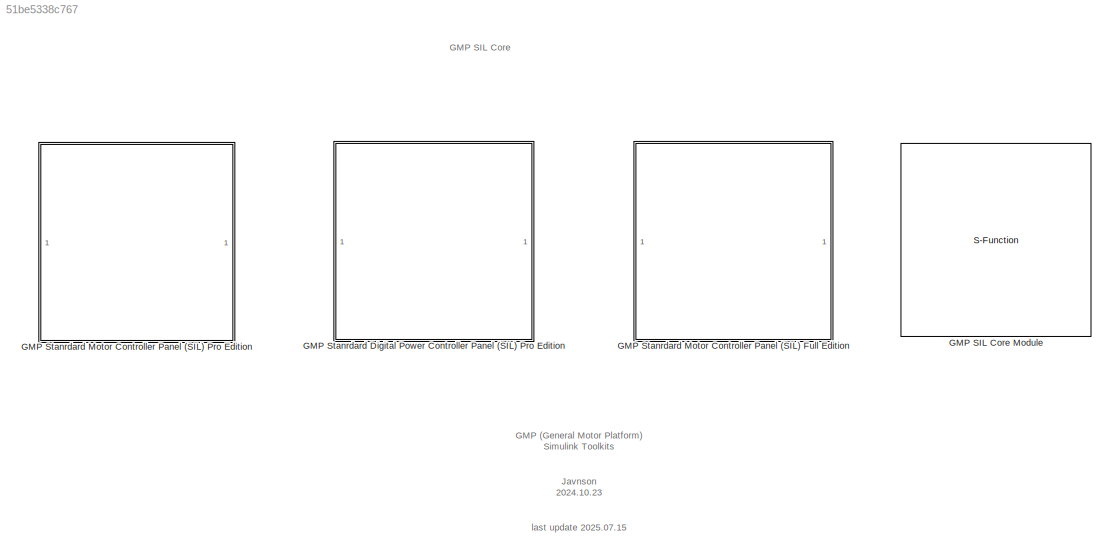
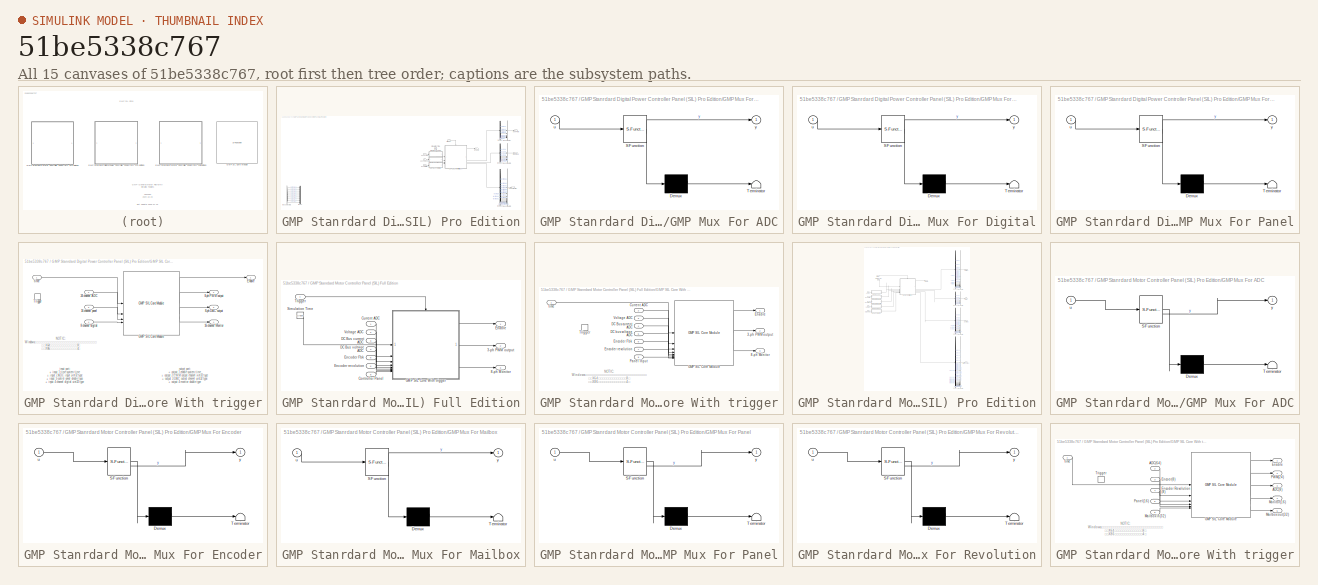
[diagram: thumbnail index - all 15 canvases of the model, root first then tree order]
MODEL slx_51be5338c767
KIND library
CONFIG AbsTol = auto
CONFIG EnableMultiTasking = off
CONFIG FixedStep = auto
CONFIG MaxStep = auto
CONFIG MinStep = auto
CONFIG RelTol = 1e-3
CONFIG SampleTimeConstraint = Unconstrained
CONFIG SolverName = VariableStepAuto
CONFIG StartTime = 0.0
CONFIG StopTime = 10.0
BLOCK [S-Function] GMP SIL Core Module
  EnableBusSupport = off
  FunctionName = GMP_SIL_Core
  Parameters = NumberUnpackedPorts, UnpackedDataTypes, UnpackedDataSizes, NumberPackedPorts, PackedDataTypes, PackedDataSizes, Alignment, HostAddr, TargetPort
  SFcnIsStateOwnerBlock = off
  SFunctionDeploymentMode = off
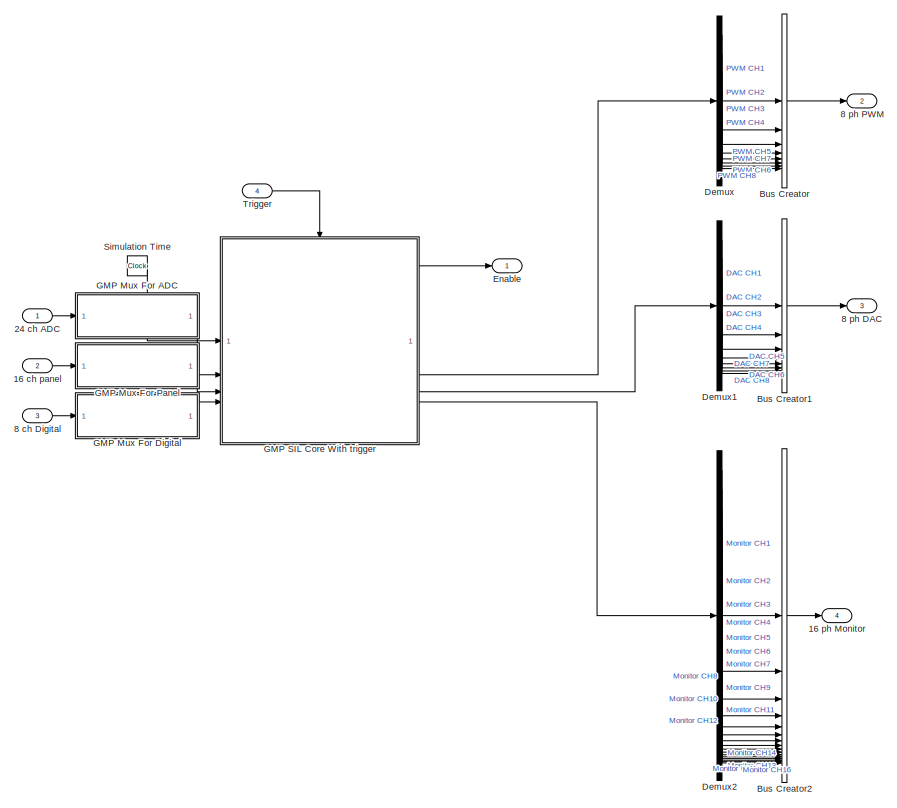
[diagram: GMP Stanrdard Digital Power Controller Panel (SIL) Pro Edition - part 1/2, right side, full height]
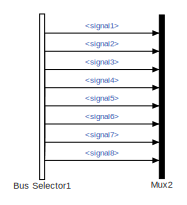
[diagram: GMP Stanrdard Digital Power Controller Panel (SIL) Pro Edition - part 2/2, bottom left region]
BLOCK [SubSystem] GMP Stanrdard Digital Power Controller Panel (SIL) Pro Edition
  PortSchema = {"entries":[{"content":{"sides":[{"content":{"connectorIds":["In1","In2","In3"]},"type":"ConnectorPlacement.EquallySpacedRectSide","uuid":"45c67bc9-9540-469a-a4ac-1e12eb9acca3"},{"content":{"connectorIds":["Out1","Out2","Out3","Out4"],"side":"RIGHT"},"type":"ConnectorPlacement.EquallySpacedRectSide","uuid":"a17116b4-0460-48ab-8ada-a785da6c5e29"},{"content":{"connectorIds":["In4"],"side":"TOP"},"ty...<+404ch>
BLOCK [Inport] GMP Stanrdard Digital Power Controller Panel (SIL) Pro Edition/16 ch panel
  Port = 2
BLOCK [Outport] GMP Stanrdard Digital Power Controller Panel (SIL) Pro Edition/16 ph Monitor
  Port = 4
BLOCK [Inport] GMP Stanrdard Digital Power Controller Panel (SIL) Pro Edition/24 ch ADC
BLOCK [Inport] GMP Stanrdard Digital Power Controller Panel (SIL) Pro Edition/8 ch Digital
  Port = 3
BLOCK [Outport] GMP Stanrdard Digital Power Controller Panel (SIL) Pro Edition/8 ph DAC
  Port = 3
BLOCK [Outport] GMP Stanrdard Digital Power Controller Panel (SIL) Pro Edition/8 ph PWM
  Port = 2
BLOCK [BusCreator] GMP Stanrdard Digital Power Controller Panel (SIL) Pro Edition/Bus Creator
  DisplayOption = bar
  InheritFromInputs = on
  Inputs = 8
BLOCK [BusCreator] GMP Stanrdard Digital Power Controller Panel (SIL) Pro Edition/Bus Creator1
  DisplayOption = bar
  InheritFromInputs = on
  Inputs = 8
BLOCK [BusCreator] GMP Stanrdard Digital Power Controller Panel (SIL) Pro Edition/Bus Creator2
  DisplayOption = bar
  InheritFromInputs = on
  Inputs = 16
BLOCK [BusSelector] GMP Stanrdard Digital Power Controller Panel (SIL) Pro Edition/Bus Selector1
  Commented = on
  OutputSignals = signal1,signal2,signal3,signal4,signal5,signal6,signal7,signal8
BLOCK [Demux] GMP Stanrdard Digital Power Controller Panel (SIL) Pro Edition/Demux
  Outputs = 8
BLOCK [Demux] GMP Stanrdard Digital Power Controller Panel (SIL) Pro Edition/Demux1
  Outputs = 8
BLOCK [Demux] GMP Stanrdard Digital Power Controller Panel (SIL) Pro Edition/Demux2
  Outputs = 16
BLOCK [Outport] GMP Stanrdard Digital Power Controller Panel (SIL) Pro Edition/Enable
BLOCK [SubSystem] GMP Stanrdard Digital Power Controller Panel (SIL) Pro Edition/GMP Mux For ADC
  ErrorFcn = Stateflow.Translate.translate
  PermitHierarchicalResolution = ExplicitOnly
  SFBlockType = MATLAB Function
  TreatAsAtomicUnit = on
BLOCK [Demux] GMP Stanrdard Digital Power Controller Panel (SIL) Pro Edition/GMP Mux For ADC/ Demux 
  Outputs = 1
BLOCK [S-Function] GMP Stanrdard Digital Power Controller Panel (SIL) Pro Edition/GMP Mux For ADC/ SFunction 
  EnableBusSupport = off
  FunctionName = sf_sfun
  PortCounts = [1 2]
  SFcnIsStateOwnerBlock = off
  SFunctionDeploymentMode = off
  Tag = Stateflow S-Function 5
BLOCK [Terminator] GMP Stanrdard Digital Power Controller Panel (SIL) Pro Edition/GMP Mux For ADC/ Terminator 
BLOCK [Inport] GMP Stanrdard Digital Power Controller Panel (SIL) Pro Edition/GMP Mux For ADC/u
BLOCK [Outport] GMP Stanrdard Digital Power Controller Panel (SIL) Pro Edition/GMP Mux For ADC/y
BLOCK [SubSystem] GMP Stanrdard Digital Power Controller Panel (SIL) Pro Edition/GMP Mux For Digital
  ErrorFcn = Stateflow.Translate.translate
  PermitHierarchicalResolution = ExplicitOnly
  SFBlockType = MATLAB Function
  TreatAsAtomicUnit = on
BLOCK [Demux] GMP Stanrdard Digital Power Controller Panel (SIL) Pro Edition/GMP Mux For Digital/ Demux 
  Outputs = 1
BLOCK [S-Function] GMP Stanrdard Digital Power Controller Panel (SIL) Pro Edition/GMP Mux For Digital/ SFunction 
  EnableBusSupport = off
  FunctionName = sf_sfun
  PortCounts = [1 2]
  SFcnIsStateOwnerBlock = off
  SFunctionDeploymentMode = off
  Tag = Stateflow S-Function 3
BLOCK [Terminator] GMP Stanrdard Digital Power Controller Panel (SIL) Pro Edition/GMP Mux For Digital/ Terminator 
BLOCK [Inport] GMP Stanrdard Digital Power Controller Panel (SIL) Pro Edition/GMP Mux For Digital/u
BLOCK [Outport] GMP Stanrdard Digital Power Controller Panel (SIL) Pro Edition/GMP Mux For Digital/y
BLOCK [SubSystem] GMP Stanrdard Digital Power Controller Panel (SIL) Pro Edition/GMP Mux For Panel
  ErrorFcn = Stateflow.Translate.translate
  PermitHierarchicalResolution = ExplicitOnly
  SFBlockType = MATLAB Function
  TreatAsAtomicUnit = on
BLOCK [Demux] GMP Stanrdard Digital Power Controller Panel (SIL) Pro Edition/GMP Mux For Panel/ Demux 
  Outputs = 1
BLOCK [S-Function] GMP Stanrdard Digital Power Controller Panel (SIL) Pro Edition/GMP Mux For Panel/ SFunction 
  EnableBusSupport = off
  FunctionName = sf_sfun
  PortCounts = [1 2]
  SFcnIsStateOwnerBlock = off
  SFunctionDeploymentMode = off
  Tag = Stateflow S-Function 4
BLOCK [Terminator] GMP Stanrdard Digital Power Controller Panel (SIL) Pro Edition/GMP Mux For Panel/ Terminator 
BLOCK [Inport] GMP Stanrdard Digital Power Controller Panel (SIL) Pro Edition/GMP Mux For Panel/u
BLOCK [Outport] GMP Stanrdard Digital Power Controller Panel (SIL) Pro Edition/GMP Mux For Panel/y
BLOCK [SubSystem] GMP Stanrdard Digital Power Controller Panel (SIL) Pro Edition/GMP SIL Core With trigger
BLOCK [Outport] GMP Stanrdard Digital Power Controller Panel (SIL) Pro Edition/GMP SIL Core With trigger/16 channel Monitor
  Port = 4
BLOCK [Inport] GMP Stanrdard Digital Power Controller Panel (SIL) Pro Edition/GMP SIL Core With trigger/16 channel panel
  Port = 3
BLOCK [Inport] GMP Stanrdard Digital Power Controller Panel (SIL) Pro Edition/GMP SIL Core With trigger/24 channel ADC
  Port = 2
BLOCK [Inport] GMP Stanrdard Digital Power Controller Panel (SIL) Pro Edition/GMP SIL Core With trigger/8 channel digital
  Port = 4
BLOCK [Outport] GMP Stanrdard Digital Power Controller Panel (SIL) Pro Edition/GMP SIL Core With trigger/8-ph DAC output
  Port = 3
BLOCK [Outport] GMP Stanrdard Digital Power Controller Panel (SIL) Pro Edition/GMP SIL Core With trigger/8-ph PWM output
  Port = 2
BLOCK [Outport] GMP Stanrdard Digital Power Controller Panel (SIL) Pro Edition/GMP SIL Core With trigger/Enable
BLOCK [Reference] GMP Stanrdard Digital Power Controller Panel (SIL) Pro Edition/GMP SIL Core With trigger/GMP SIL Core Module  REF=gmp_sil_core_pack/GMP SIL Core Module
  SourceBlock = gmp_sil_core_pack/GMP SIL Core Module
  SourceProductName = GMP Utilities Library
  SourceType = GMP CTL SIL Core
BLOCK [TriggerPort] GMP Stanrdard Digital Power Controller Panel (SIL) Pro Edition/GMP SIL Core With trigger/Trigger
  PortDimensions = 1
  StatesWhenEnabling = held
  VariantControl = (inherit)
BLOCK [Inport] GMP Stanrdard Digital Power Controller Panel (SIL) Pro Edition/GMP SIL Core With trigger/time
BLOCK [Mux] GMP Stanrdard Digital Power Controller Panel (SIL) Pro Edition/Mux2
  Commented = on
  DisplayOption = bar
  Inputs = 8
BLOCK [Clock] GMP Stanrdard Digital Power Controller Panel (SIL) Pro Edition/Simulation Time
BLOCK [Inport] GMP Stanrdard Digital Power Controller Panel (SIL) Pro Edition/Trigger
  Port = 4
BLOCK [SubSystem] GMP Stanrdard Motor Controller Panel (SIL) Full Edition
  PortSchema = {"entries":[{"content":{"sides":[{"content":{"connectorIds":["In1","In2","In3","In4","In5","In6"]},"type":"ConnectorPlacement.EquallySpacedRectSide","uuid":"45c67bc9-9540-469a-a4ac-1e12eb9acca3"},{"content":{"connectorIds":["Out1","Out2"],"side":"RIGHT"},"type":"ConnectorPlacement.EquallySpacedRectSide","uuid":"a17116b4-0460-48ab-8ada-a785da6c5e29"},{"content":{"connectorIds":["In7"],"side":"TOP"}...<+438ch>
BLOCK [Outport] GMP Stanrdard Motor Controller Panel (SIL) Full Edition/3-ph PWM output
  Port = 2
BLOCK [Outport] GMP Stanrdard Motor Controller Panel (SIL) Full Edition/8-ph Monitor
  Port = 3
BLOCK [Inport] GMP Stanrdard Motor Controller Panel (SIL) Full Edition/Controller Panel
  Port = 8
BLOCK [Inport] GMP Stanrdard Motor Controller Panel (SIL) Full Edition/Current ADC
BLOCK [Inport] GMP Stanrdard Motor Controller Panel (SIL) Full Edition/DC Bus current ADC
  Port = 3
BLOCK [Inport] GMP Stanrdard Motor Controller Panel (SIL) Full Edition/DC Bus voltage ADC
  Port = 4
BLOCK [Outport] GMP Stanrdard Motor Controller Panel (SIL) Full Edition/Enable
BLOCK [Inport] GMP Stanrdard Motor Controller Panel (SIL) Full Edition/Encoder Fbk
  Port = 5
BLOCK [Inport] GMP Stanrdard Motor Controller Panel (SIL) Full Edition/Encoder revolution
  Port = 6
BLOCK [SubSystem] GMP Stanrdard Motor Controller Panel (SIL) Full Edition/GMP SIL Core With trigger
BLOCK [Outport] GMP Stanrdard Motor Controller Panel (SIL) Full Edition/GMP SIL Core With trigger/3-ph PWM output
  Port = 2
BLOCK [Outport] GMP Stanrdard Motor Controller Panel (SIL) Full Edition/GMP SIL Core With trigger/8-ph Monitor
  Port = 3
BLOCK [Inport] GMP Stanrdard Motor Controller Panel (SIL) Full Edition/GMP SIL Core With trigger/Current ADC
  Port = 2
BLOCK [Inport] GMP Stanrdard Motor Controller Panel (SIL) Full Edition/GMP SIL Core With trigger/DC Bus current ADC
  Port = 4
BLOCK [Inport] GMP Stanrdard Motor Controller Panel (SIL) Full Edition/GMP SIL Core With trigger/DC bus voltage ADC
  Port = 5
BLOCK [Outport] GMP Stanrdard Motor Controller Panel (SIL) Full Edition/GMP SIL Core With trigger/Enable
BLOCK [Inport] GMP Stanrdard Motor Controller Panel (SIL) Full Edition/GMP SIL Core With trigger/Encoder Fbk
  Port = 6
BLOCK [Inport] GMP Stanrdard Motor Controller Panel (SIL) Full Edition/GMP SIL Core With trigger/Encoder revolution
  Port = 7
BLOCK [Reference] GMP Stanrdard Motor Controller Panel (SIL) Full Edition/GMP SIL Core With trigger/GMP SIL Core Module  REF=gmp_sil_core_pack/GMP SIL Core Module
  SourceBlock = gmp_sil_core_pack/GMP SIL Core Module
  SourceProductName = GMP Utilities Library
  SourceType = GMP CTL SIL Core
BLOCK [Inport] GMP Stanrdard Motor Controller Panel (SIL) Full Edition/GMP SIL Core With trigger/Panel Input
  Port = 8
BLOCK [TriggerPort] GMP Stanrdard Motor Controller Panel (SIL) Full Edition/GMP SIL Core With trigger/Trigger
  PortDimensions = 1
  StatesWhenEnabling = held
  VariantControl = (inherit)
BLOCK [Inport] GMP Stanrdard Motor Controller Panel (SIL) Full Edition/GMP SIL Core With trigger/Voltage ADC
  Port = 3
BLOCK [Inport] GMP Stanrdard Motor Controller Panel (SIL) Full Edition/GMP SIL Core With trigger/time
BLOCK [Clock] GMP Stanrdard Motor Controller Panel (SIL) Full Edition/Simulation Time
BLOCK [Inport] GMP Stanrdard Motor Controller Panel (SIL) Full Edition/Trigger
  Port = 7
BLOCK [Inport] GMP Stanrdard Motor Controller Panel (SIL) Full Edition/Voltage ADC
  Port = 2
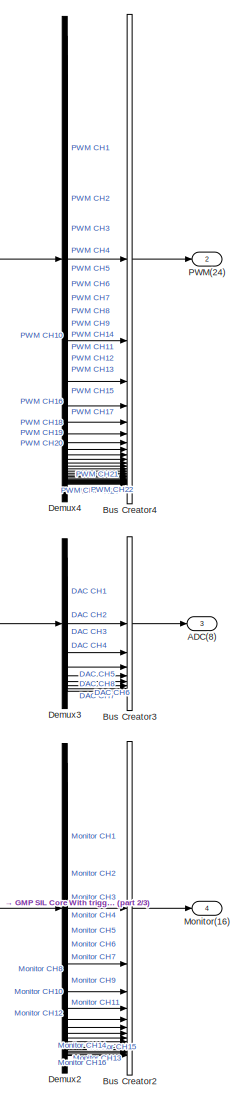
[diagram: GMP Stanrdard Motor Controller Panel (SIL) Pro Edition - part 1/3, top right region]
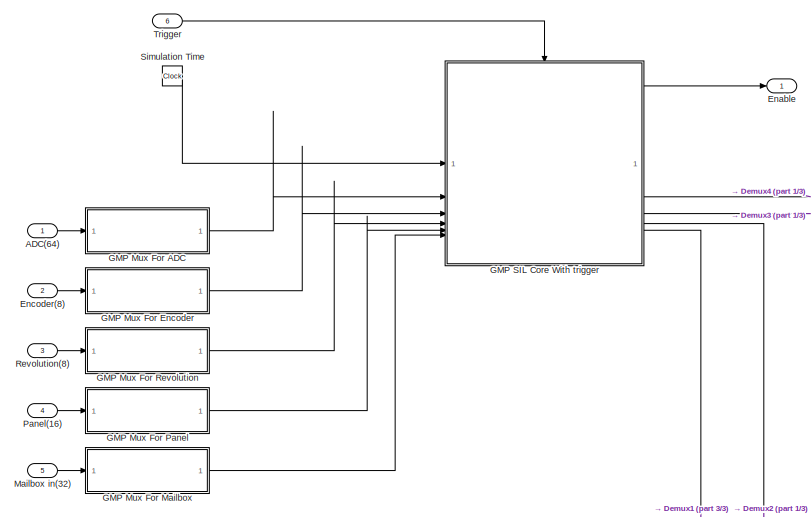
[diagram: GMP Stanrdard Motor Controller Panel (SIL) Pro Edition - part 2/3, top left region]
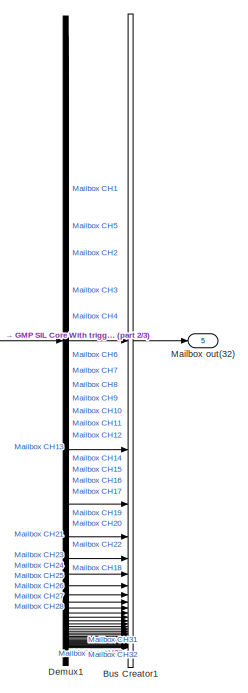
[diagram: GMP Stanrdard Motor Controller Panel (SIL) Pro Edition - part 3/3, bottom right region]
BLOCK [SubSystem] GMP Stanrdard Motor Controller Panel (SIL) Pro Edition
  PortSchema = {"entries":[{"content":{"sides":[{"content":{"connectorIds":["In1","In2","In3","In4","In5"]},"type":"ConnectorPlacement.EquallySpacedRectSide","uuid":"bbb38fc4-c00d-4f5b-8f26-db6bc7dcef4b"},{"content":{"connectorIds":["Out1","Out2","Out3","Out4","Out5"],"side":"RIGHT"},"type":"ConnectorPlacement.EquallySpacedRectSide","uuid":"8c76eb91-b69b-4328-81e2-2047f2677c46"},{"content":{"connectorIds":["In6"...<+297ch>
BLOCK [Inport] GMP Stanrdard Motor Controller Panel (SIL) Pro Edition/ADC(64)
BLOCK [Outport] GMP Stanrdard Motor Controller Panel (SIL) Pro Edition/ADC(8)
  Port = 3
BLOCK [BusCreator] GMP Stanrdard Motor Controller Panel (SIL) Pro Edition/Bus Creator1
  DisplayOption = bar
  InheritFromInputs = on
  Inputs = 32
BLOCK [BusCreator] GMP Stanrdard Motor Controller Panel (SIL) Pro Edition/Bus Creator2
  DisplayOption = bar
  InheritFromInputs = on
  Inputs = 16
BLOCK [BusCreator] GMP Stanrdard Motor Controller Panel (SIL) Pro Edition/Bus Creator3
  DisplayOption = bar
  InheritFromInputs = on
  Inputs = 8
BLOCK [BusCreator] GMP Stanrdard Motor Controller Panel (SIL) Pro Edition/Bus Creator4
  DisplayOption = bar
  InheritFromInputs = on
  Inputs = 24
BLOCK [Demux] GMP Stanrdard Motor Controller Panel (SIL) Pro Edition/Demux1
  Outputs = 32
BLOCK [Demux] GMP Stanrdard Motor Controller Panel (SIL) Pro Edition/Demux2
  Outputs = 16
BLOCK [Demux] GMP Stanrdard Motor Controller Panel (SIL) Pro Edition/Demux3
  Outputs = 8
BLOCK [Demux] GMP Stanrdard Motor Controller Panel (SIL) Pro Edition/Demux4
  Outputs = 24
BLOCK [Outport] GMP Stanrdard Motor Controller Panel (SIL) Pro Edition/Enable
BLOCK [Inport] GMP Stanrdard Motor Controller Panel (SIL) Pro Edition/Encoder(8)
  Port = 2
BLOCK [SubSystem] GMP Stanrdard Motor Controller Panel (SIL) Pro Edition/GMP Mux For ADC
  ErrorFcn = Stateflow.Translate.translate
  PermitHierarchicalResolution = ExplicitOnly
  SFBlockType = MATLAB Function
  TreatAsAtomicUnit = on
BLOCK [Demux] GMP Stanrdard Motor Controller Panel (SIL) Pro Edition/GMP Mux For ADC/ Demux 
  Outputs = 1
BLOCK [S-Function] GMP Stanrdard Motor Controller Panel (SIL) Pro Edition/GMP Mux For ADC/ SFunction 
  EnableBusSupport = off
  FunctionName = sf_sfun
  PortCounts = [1 2]
  SFcnIsStateOwnerBlock = off
  SFunctionDeploymentMode = off
  Tag = Stateflow S-Function 11
BLOCK [Terminator] GMP Stanrdard Motor Controller Panel (SIL) Pro Edition/GMP Mux For ADC/ Terminator 
BLOCK [Inport] GMP Stanrdard Motor Controller Panel (SIL) Pro Edition/GMP Mux For ADC/u
BLOCK [Outport] GMP Stanrdard Motor Controller Panel (SIL) Pro Edition/GMP Mux For ADC/y
BLOCK [SubSystem] GMP Stanrdard Motor Controller Panel (SIL) Pro Edition/GMP Mux For Encoder
  ErrorFcn = Stateflow.Translate.translate
  PermitHierarchicalResolution = ExplicitOnly
  SFBlockType = MATLAB Function
  TreatAsAtomicUnit = on
BLOCK [Demux] GMP Stanrdard Motor Controller Panel (SIL) Pro Edition/GMP Mux For Encoder/ Demux 
  Outputs = 1
BLOCK [S-Function] GMP Stanrdard Motor Controller Panel (SIL) Pro Edition/GMP Mux For Encoder/ SFunction 
  EnableBusSupport = off
  FunctionName = sf_sfun
  PortCounts = [1 2]
  SFcnIsStateOwnerBlock = off
  SFunctionDeploymentMode = off
  Tag = Stateflow S-Function 10
BLOCK [Terminator] GMP Stanrdard Motor Controller Panel (SIL) Pro Edition/GMP Mux For Encoder/ Terminator 
BLOCK [Inport] GMP Stanrdard Motor Controller Panel (SIL) Pro Edition/GMP Mux For Encoder/u
BLOCK [Outport] GMP Stanrdard Motor Controller Panel (SIL) Pro Edition/GMP Mux For Encoder/y
BLOCK [SubSystem] GMP Stanrdard Motor Controller Panel (SIL) Pro Edition/GMP Mux For Mailbox
  ErrorFcn = Stateflow.Translate.translate
  PermitHierarchicalResolution = ExplicitOnly
  SFBlockType = MATLAB Function
  TreatAsAtomicUnit = on
BLOCK [Demux] GMP Stanrdard Motor Controller Panel (SIL) Pro Edition/GMP Mux For Mailbox/ Demux 
  Outputs = 1
BLOCK [S-Function] GMP Stanrdard Motor Controller Panel (SIL) Pro Edition/GMP Mux For Mailbox/ SFunction 
  EnableBusSupport = off
  FunctionName = sf_sfun
  PortCounts = [1 2]
  SFcnIsStateOwnerBlock = off
  SFunctionDeploymentMode = off
  Tag = Stateflow S-Function 7
BLOCK [Terminator] GMP Stanrdard Motor Controller Panel (SIL) Pro Edition/GMP Mux For Mailbox/ Terminator 
BLOCK [Inport] GMP Stanrdard Motor Controller Panel (SIL) Pro Edition/GMP Mux For Mailbox/u
BLOCK [Outport] GMP Stanrdard Motor Controller Panel (SIL) Pro Edition/GMP Mux For Mailbox/y
BLOCK [SubSystem] GMP Stanrdard Motor Controller Panel (SIL) Pro Edition/GMP Mux For Panel
  ErrorFcn = Stateflow.Translate.translate
  PermitHierarchicalResolution = ExplicitOnly
  SFBlockType = MATLAB Function
  TreatAsAtomicUnit = on
BLOCK [Demux] GMP Stanrdard Motor Controller Panel (SIL) Pro Edition/GMP Mux For Panel/ Demux 
  Outputs = 1
BLOCK [S-Function] GMP Stanrdard Motor Controller Panel (SIL) Pro Edition/GMP Mux For Panel/ SFunction 
  EnableBusSupport = off
  FunctionName = sf_sfun
  PortCounts = [1 2]
  SFcnIsStateOwnerBlock = off
  SFunctionDeploymentMode = off
  Tag = Stateflow S-Function 8
BLOCK [Terminator] GMP Stanrdard Motor Controller Panel (SIL) Pro Edition/GMP Mux For Panel/ Terminator 
BLOCK [Inport] GMP Stanrdard Motor Controller Panel (SIL) Pro Edition/GMP Mux For Panel/u
BLOCK [Outport] GMP Stanrdard Motor Controller Panel (SIL) Pro Edition/GMP Mux For Panel/y
BLOCK [SubSystem] GMP Stanrdard Motor Controller Panel (SIL) Pro Edition/GMP Mux For Revolution
  ErrorFcn = Stateflow.Translate.translate
  PermitHierarchicalResolution = ExplicitOnly
  SFBlockType = MATLAB Function
  TreatAsAtomicUnit = on
BLOCK [Demux] GMP Stanrdard Motor Controller Panel (SIL) Pro Edition/GMP Mux For Revolution/ Demux 
  Outputs = 1
BLOCK [S-Function] GMP Stanrdard Motor Controller Panel (SIL) Pro Edition/GMP Mux For Revolution/ SFunction 
  EnableBusSupport = off
  FunctionName = sf_sfun
  PortCounts = [1 2]
  SFcnIsStateOwnerBlock = off
  SFunctionDeploymentMode = off
  Tag = Stateflow S-Function 9
BLOCK [Terminator] GMP Stanrdard Motor Controller Panel (SIL) Pro Edition/GMP Mux For Revolution/ Terminator 
BLOCK [Inport] GMP Stanrdard Motor Controller Panel (SIL) Pro Edition/GMP Mux For Revolution/u
BLOCK [Outport] GMP Stanrdard Motor Controller Panel (SIL) Pro Edition/GMP Mux For Revolution/y
BLOCK [SubSystem] GMP Stanrdard Motor Controller Panel (SIL) Pro Edition/GMP SIL Core With trigger
BLOCK [Inport] GMP Stanrdard Motor Controller Panel (SIL) Pro Edition/GMP SIL Core With trigger/ADC(64)
  Port = 2
BLOCK [Outport] GMP Stanrdard Motor Controller Panel (SIL) Pro Edition/GMP SIL Core With trigger/ADC(8)
  Port = 3
BLOCK [Outport] GMP Stanrdard Motor Controller Panel (SIL) Pro Edition/GMP SIL Core With trigger/Enable
BLOCK [Inport] GMP Stanrdard Motor Controller Panel (SIL) Pro Edition/GMP SIL Core With trigger/Encoder Revolution(8)
  Port = 4
BLOCK [Inport] GMP Stanrdard Motor Controller Panel (SIL) Pro Edition/GMP SIL Core With trigger/Encoer(8)
  Port = 3
BLOCK [Reference] GMP Stanrdard Motor Controller Panel (SIL) Pro Edition/GMP SIL Core With trigger/GMP SIL Core Module  REF=gmp_sil_core_pack/GMP SIL Core Module
  SourceBlock = gmp_sil_core_pack/GMP SIL Core Module
  SourceProductName = GMP Utilities Library
  SourceType = GMP CTL SIL Core
BLOCK [Inport] GMP Stanrdard Motor Controller Panel (SIL) Pro Edition/GMP SIL Core With trigger/Mailbox in(32)
  Port = 6
BLOCK [Outport] GMP Stanrdard Motor Controller Panel (SIL) Pro Edition/GMP SIL Core With trigger/Mailbox out(32)
  Port = 5
BLOCK [Outport] GMP Stanrdard Motor Controller Panel (SIL) Pro Edition/GMP SIL Core With trigger/Monitor(16)
  Port = 4
BLOCK [Outport] GMP Stanrdard Motor Controller Panel (SIL) Pro Edition/GMP SIL Core With trigger/PWM(24)
  Port = 2
BLOCK [Inport] GMP Stanrdard Motor Controller Panel (SIL) Pro Edition/GMP SIL Core With trigger/Panel(16)
  Port = 5
BLOCK [TriggerPort] GMP Stanrdard Motor Controller Panel (SIL) Pro Edition/GMP SIL Core With trigger/Trigger
  PortDimensions = 1
  StatesWhenEnabling = held
  VariantControl = (inherit)
BLOCK [Inport] GMP Stanrdard Motor Controller Panel (SIL) Pro Edition/GMP SIL Core With trigger/time
BLOCK [Inport] GMP Stanrdard Motor Controller Panel (SIL) Pro Edition/Mailbox in(32)
  Port = 5
BLOCK [Outport] GMP Stanrdard Motor Controller Panel (SIL) Pro Edition/Mailbox out(32)
  Port = 5
BLOCK [Outport] GMP Stanrdard Motor Controller Panel (SIL) Pro Edition/Monitor(16)
  Port = 4
BLOCK [Outport] GMP Stanrdard Motor Controller Panel (SIL) Pro Edition/PWM(24)
  Port = 2
BLOCK [Inport] GMP Stanrdard Motor Controller Panel (SIL) Pro Edition/Panel(16)
  Port = 4
BLOCK [Inport] GMP Stanrdard Motor Controller Panel (SIL) Pro Edition/Revolution(8)
  Port = 3
BLOCK [Clock] GMP Stanrdard Motor Controller Panel (SIL) Pro Edition/Simulation Time
BLOCK [Inport] GMP Stanrdard Motor Controller Panel (SIL) Pro Edition/Trigger
  Port = 6
ANNOTATION (root): GMP SIL Core
ANNOTATION (root): GMP (General Motor Platform) Simulink Toolkits
ANNOTATION (root): Javnson 2024.10.23
ANNOTATION (root): last update 2025.07.15
ANNOTATION GMP Stanrdard Digital Power Controller Panel (SIL) Pro Edition/GMP SIL Core With trigger: NOTIC: Windows平台下必须设置为正确的内存对齐方式，否则会导致收到的数据乱码！ 对于X64的编译方式，默认的内存对齐为8； 对于X86的编译方式，默认的内存对齐为4。
ANNOTATION GMP Stanrdard Digital Power Controller Panel (SIL) Pro Edition/GMP SIL Core With trigger: input port: + input 1 time system time + input 2 ADC input uint32 type + input 3 control panel double type + input 4 channel digital uint32 type
ANNOTATION GMP Stanrdard Digital Power Controller Panel (SIL) Pro Edition/GMP SIL Core With trigger: output port: + output 1 enable system time + output 2 PWM output channel uint32 type + output 3 DAC output channel uint32 type + output 4 monitor double type
ANNOTATION GMP Stanrdard Motor Controller Panel (SIL) Full Edition/GMP SIL Core With trigger: NOTIC: Windows平台下必须设置为正确的内存对齐方式，否则会导致收到的数据乱码！ 对于X64的编译方式，默认的内存对齐为8； 对于X86的编译方式，默认的内存对齐为4。
ANNOTATION GMP Stanrdard Motor Controller Panel (SIL) Pro Edition/GMP SIL Core With trigger: NOTIC: Windows平台下必须设置为正确的内存对齐方式，否则会导致收到的数据乱码！ 对于X64的编译方式，默认的内存对齐为8； 对于X86的编译方式，默认的内存对齐为4。
LINE GMP Stanrdard Digital Power Controller Panel (SIL) Pro Edition/16 ch panel:1 -> GMP Stanrdard Digital Power Controller Panel (SIL) Pro Edition/GMP Mux For Panel:1
LINE GMP Stanrdard Digital Power Controller Panel (SIL) Pro Edition/24 ch ADC:1 -> GMP Stanrdard Digital Power Controller Panel (SIL) Pro Edition/GMP Mux For ADC:1
LINE GMP Stanrdard Digital Power Controller Panel (SIL) Pro Edition/8 ch Digital:1 -> GMP Stanrdard Digital Power Controller Panel (SIL) Pro Edition/GMP Mux For Digital:1
LINE GMP Stanrdard Digital Power Controller Panel (SIL) Pro Edition/Bus Creator1:1 -> GMP Stanrdard Digital Power Controller Panel (SIL) Pro Edition/8 ph DAC:1
LINE GMP Stanrdard Digital Power Controller Panel (SIL) Pro Edition/Bus Creator2:1 -> GMP Stanrdard Digital Power Controller Panel (SIL) Pro Edition/16 ph Monitor:1
LINE GMP Stanrdard Digital Power Controller Panel (SIL) Pro Edition/Bus Creator:1 -> GMP Stanrdard Digital Power Controller Panel (SIL) Pro Edition/8 ph PWM:1
LINE GMP Stanrdard Digital Power Controller Panel (SIL) Pro Edition/Bus Selector1:1 -> GMP Stanrdard Digital Power Controller Panel (SIL) Pro Edition/Mux2:1
LINE GMP Stanrdard Digital Power Controller Panel (SIL) Pro Edition/Bus Selector1:2 -> GMP Stanrdard Digital Power Controller Panel (SIL) Pro Edition/Mux2:2
LINE GMP Stanrdard Digital Power Controller Panel (SIL) Pro Edition/Bus Selector1:3 -> GMP Stanrdard Digital Power Controller Panel (SIL) Pro Edition/Mux2:3
LINE GMP Stanrdard Digital Power Controller Panel (SIL) Pro Edition/Bus Selector1:4 -> GMP Stanrdard Digital Power Controller Panel (SIL) Pro Edition/Mux2:4
LINE GMP Stanrdard Digital Power Controller Panel (SIL) Pro Edition/Bus Selector1:5 -> GMP Stanrdard Digital Power Controller Panel (SIL) Pro Edition/Mux2:5
LINE GMP Stanrdard Digital Power Controller Panel (SIL) Pro Edition/Bus Selector1:6 -> GMP Stanrdard Digital Power Controller Panel (SIL) Pro Edition/Mux2:6
LINE GMP Stanrdard Digital Power Controller Panel (SIL) Pro Edition/Bus Selector1:7 -> GMP Stanrdard Digital Power Controller Panel (SIL) Pro Edition/Mux2:7
LINE GMP Stanrdard Digital Power Controller Panel (SIL) Pro Edition/Bus Selector1:8 -> GMP Stanrdard Digital Power Controller Panel (SIL) Pro Edition/Mux2:8
LINE GMP Stanrdard Digital Power Controller Panel (SIL) Pro Edition/Demux1:1 -> GMP Stanrdard Digital Power Controller Panel (SIL) Pro Edition/Bus Creator1:1
LINE GMP Stanrdard Digital Power Controller Panel (SIL) Pro Edition/Demux1:2 -> GMP Stanrdard Digital Power Controller Panel (SIL) Pro Edition/Bus Creator1:2
LINE GMP Stanrdard Digital Power Controller Panel (SIL) Pro Edition/Demux1:3 -> GMP Stanrdard Digital Power Controller Panel (SIL) Pro Edition/Bus Creator1:3
LINE GMP Stanrdard Digital Power Controller Panel (SIL) Pro Edition/Demux1:4 -> GMP Stanrdard Digital Power Controller Panel (SIL) Pro Edition/Bus Creator1:4
LINE GMP Stanrdard Digital Power Controller Panel (SIL) Pro Edition/Demux1:5 -> GMP Stanrdard Digital Power Controller Panel (SIL) Pro Edition/Bus Creator1:5
LINE GMP Stanrdard Digital Power Controller Panel (SIL) Pro Edition/Demux1:6 -> GMP Stanrdard Digital Power Controller Panel (SIL) Pro Edition/Bus Creator1:6
LINE GMP Stanrdard Digital Power Controller Panel (SIL) Pro Edition/Demux1:7 -> GMP Stanrdard Digital Power Controller Panel (SIL) Pro Edition/Bus Creator1:7
LINE GMP Stanrdard Digital Power Controller Panel (SIL) Pro Edition/Demux1:8 -> GMP Stanrdard Digital Power Controller Panel (SIL) Pro Edition/Bus Creator1:8
LINE GMP Stanrdard Digital Power Controller Panel (SIL) Pro Edition/Demux2:1 -> GMP Stanrdard Digital Power Controller Panel (SIL) Pro Edition/Bus Creator2:1
LINE GMP Stanrdard Digital Power Controller Panel (SIL) Pro Edition/Demux2:10 -> GMP Stanrdard Digital Power Controller Panel (SIL) Pro Edition/Bus Creator2:10
LINE GMP Stanrdard Digital Power Controller Panel (SIL) Pro Edition/Demux2:11 -> GMP Stanrdard Digital Power Controller Panel (SIL) Pro Edition/Bus Creator2:11
LINE GMP Stanrdard Digital Power Controller Panel (SIL) Pro Edition/Demux2:12 -> GMP Stanrdard Digital Power Controller Panel (SIL) Pro Edition/Bus Creator2:12
LINE GMP Stanrdard Digital Power Controller Panel (SIL) Pro Edition/Demux2:13 -> GMP Stanrdard Digital Power Controller Panel (SIL) Pro Edition/Bus Creator2:13
LINE GMP Stanrdard Digital Power Controller Panel (SIL) Pro Edition/Demux2:14 -> GMP Stanrdard Digital Power Controller Panel (SIL) Pro Edition/Bus Creator2:14
LINE GMP Stanrdard Digital Power Controller Panel (SIL) Pro Edition/Demux2:15 -> GMP Stanrdard Digital Power Controller Panel (SIL) Pro Edition/Bus Creator2:15
LINE GMP Stanrdard Digital Power Controller Panel (SIL) Pro Edition/Demux2:16 -> GMP Stanrdard Digital Power Controller Panel (SIL) Pro Edition/Bus Creator2:16
LINE GMP Stanrdard Digital Power Controller Panel (SIL) Pro Edition/Demux2:2 -> GMP Stanrdard Digital Power Controller Panel (SIL) Pro Edition/Bus Creator2:2
LINE GMP Stanrdard Digital Power Controller Panel (SIL) Pro Edition/Demux2:3 -> GMP Stanrdard Digital Power Controller Panel (SIL) Pro Edition/Bus Creator2:3
LINE GMP Stanrdard Digital Power Controller Panel (SIL) Pro Edition/Demux2:4 -> GMP Stanrdard Digital Power Controller Panel (SIL) Pro Edition/Bus Creator2:4
LINE GMP Stanrdard Digital Power Controller Panel (SIL) Pro Edition/Demux2:5 -> GMP Stanrdard Digital Power Controller Panel (SIL) Pro Edition/Bus Creator2:5
LINE GMP Stanrdard Digital Power Controller Panel (SIL) Pro Edition/Demux2:6 -> GMP Stanrdard Digital Power Controller Panel (SIL) Pro Edition/Bus Creator2:6
LINE GMP Stanrdard Digital Power Controller Panel (SIL) Pro Edition/Demux2:7 -> GMP Stanrdard Digital Power Controller Panel (SIL) Pro Edition/Bus Creator2:7
LINE GMP Stanrdard Digital Power Controller Panel (SIL) Pro Edition/Demux2:8 -> GMP Stanrdard Digital Power Controller Panel (SIL) Pro Edition/Bus Creator2:8
LINE GMP Stanrdard Digital Power Controller Panel (SIL) Pro Edition/Demux2:9 -> GMP Stanrdard Digital Power Controller Panel (SIL) Pro Edition/Bus Creator2:9
LINE GMP Stanrdard Digital Power Controller Panel (SIL) Pro Edition/Demux:1 -> GMP Stanrdard Digital Power Controller Panel (SIL) Pro Edition/Bus Creator:1
LINE GMP Stanrdard Digital Power Controller Panel (SIL) Pro Edition/Demux:2 -> GMP Stanrdard Digital Power Controller Panel (SIL) Pro Edition/Bus Creator:2
LINE GMP Stanrdard Digital Power Controller Panel (SIL) Pro Edition/Demux:3 -> GMP Stanrdard Digital Power Controller Panel (SIL) Pro Edition/Bus Creator:3
LINE GMP Stanrdard Digital Power Controller Panel (SIL) Pro Edition/Demux:4 -> GMP Stanrdard Digital Power Controller Panel (SIL) Pro Edition/Bus Creator:4
LINE GMP Stanrdard Digital Power Controller Panel (SIL) Pro Edition/Demux:5 -> GMP Stanrdard Digital Power Controller Panel (SIL) Pro Edition/Bus Creator:5
LINE GMP Stanrdard Digital Power Controller Panel (SIL) Pro Edition/Demux:6 -> GMP Stanrdard Digital Power Controller Panel (SIL) Pro Edition/Bus Creator:6
LINE GMP Stanrdard Digital Power Controller Panel (SIL) Pro Edition/Demux:7 -> GMP Stanrdard Digital Power Controller Panel (SIL) Pro Edition/Bus Creator:7
LINE GMP Stanrdard Digital Power Controller Panel (SIL) Pro Edition/Demux:8 -> GMP Stanrdard Digital Power Controller Panel (SIL) Pro Edition/Bus Creator:8
LINE GMP Stanrdard Digital Power Controller Panel (SIL) Pro Edition/GMP Mux For ADC:1 -> GMP Stanrdard Digital Power Controller Panel (SIL) Pro Edition/GMP SIL Core With trigger:2
LINE GMP Stanrdard Digital Power Controller Panel (SIL) Pro Edition/GMP Mux For Digital:1 -> GMP Stanrdard Digital Power Controller Panel (SIL) Pro Edition/GMP SIL Core With trigger:4
LINE GMP Stanrdard Digital Power Controller Panel (SIL) Pro Edition/GMP Mux For Panel:1 -> GMP Stanrdard Digital Power Controller Panel (SIL) Pro Edition/GMP SIL Core With trigger:3
LINE GMP Stanrdard Digital Power Controller Panel (SIL) Pro Edition/GMP SIL Core With trigger/16 channel panel:1 -> GMP Stanrdard Digital Power Controller Panel (SIL) Pro Edition/GMP SIL Core With trigger/GMP SIL Core Module:3
LINE GMP Stanrdard Digital Power Controller Panel (SIL) Pro Edition/GMP SIL Core With trigger/24 channel ADC:1 -> GMP Stanrdard Digital Power Controller Panel (SIL) Pro Edition/GMP SIL Core With trigger/GMP SIL Core Module:2
LINE GMP Stanrdard Digital Power Controller Panel (SIL) Pro Edition/GMP SIL Core With trigger/8 channel digital:1 -> GMP Stanrdard Digital Power Controller Panel (SIL) Pro Edition/GMP SIL Core With trigger/GMP SIL Core Module:4
LINE GMP Stanrdard Digital Power Controller Panel (SIL) Pro Edition/GMP SIL Core With trigger/GMP SIL Core Module:1 -> GMP Stanrdard Digital Power Controller Panel (SIL) Pro Edition/GMP SIL Core With trigger/Enable:1
LINE GMP Stanrdard Digital Power Controller Panel (SIL) Pro Edition/GMP SIL Core With trigger/GMP SIL Core Module:2 -> GMP Stanrdard Digital Power Controller Panel (SIL) Pro Edition/GMP SIL Core With trigger/8-ph PWM output:1
LINE GMP Stanrdard Digital Power Controller Panel (SIL) Pro Edition/GMP SIL Core With trigger/GMP SIL Core Module:3 -> GMP Stanrdard Digital Power Controller Panel (SIL) Pro Edition/GMP SIL Core With trigger/8-ph DAC output:1
LINE GMP Stanrdard Digital Power Controller Panel (SIL) Pro Edition/GMP SIL Core With trigger/GMP SIL Core Module:4 -> GMP Stanrdard Digital Power Controller Panel (SIL) Pro Edition/GMP SIL Core With trigger/16 channel Monitor:1
LINE GMP Stanrdard Digital Power Controller Panel (SIL) Pro Edition/GMP SIL Core With trigger/time:1 -> GMP Stanrdard Digital Power Controller Panel (SIL) Pro Edition/GMP SIL Core With trigger/GMP SIL Core Module:1
LINE GMP Stanrdard Digital Power Controller Panel (SIL) Pro Edition/GMP SIL Core With trigger:1 -> GMP Stanrdard Digital Power Controller Panel (SIL) Pro Edition/Enable:1
LINE GMP Stanrdard Digital Power Controller Panel (SIL) Pro Edition/GMP SIL Core With trigger:2 -> GMP Stanrdard Digital Power Controller Panel (SIL) Pro Edition/Demux:1
LINE GMP Stanrdard Digital Power Controller Panel (SIL) Pro Edition/GMP SIL Core With trigger:3 -> GMP Stanrdard Digital Power Controller Panel (SIL) Pro Edition/Demux1:1
LINE GMP Stanrdard Digital Power Controller Panel (SIL) Pro Edition/GMP SIL Core With trigger:4 -> GMP Stanrdard Digital Power Controller Panel (SIL) Pro Edition/Demux2:1
LINE GMP Stanrdard Digital Power Controller Panel (SIL) Pro Edition/Simulation Time:1 -> GMP Stanrdard Digital Power Controller Panel (SIL) Pro Edition/GMP SIL Core With trigger:1
LINE GMP Stanrdard Digital Power Controller Panel (SIL) Pro Edition/Trigger:1 -> GMP Stanrdard Digital Power Controller Panel (SIL) Pro Edition/GMP SIL Core With trigger:trigger
LINE GMP Stanrdard Motor Controller Panel (SIL) Full Edition/Controller Panel:1 -> GMP Stanrdard Motor Controller Panel (SIL) Full Edition/GMP SIL Core With trigger:8
LINE GMP Stanrdard Motor Controller Panel (SIL) Full Edition/Current ADC:1 -> GMP Stanrdard Motor Controller Panel (SIL) Full Edition/GMP SIL Core With trigger:2
LINE GMP Stanrdard Motor Controller Panel (SIL) Full Edition/DC Bus current ADC:1 -> GMP Stanrdard Motor Controller Panel (SIL) Full Edition/GMP SIL Core With trigger:4
LINE GMP Stanrdard Motor Controller Panel (SIL) Full Edition/DC Bus voltage ADC:1 -> GMP Stanrdard Motor Controller Panel (SIL) Full Edition/GMP SIL Core With trigger:5
LINE GMP Stanrdard Motor Controller Panel (SIL) Full Edition/Encoder Fbk:1 -> GMP Stanrdard Motor Controller Panel (SIL) Full Edition/GMP SIL Core With trigger:6
LINE GMP Stanrdard Motor Controller Panel (SIL) Full Edition/Encoder revolution:1 -> GMP Stanrdard Motor Controller Panel (SIL) Full Edition/GMP SIL Core With trigger:7
LINE GMP Stanrdard Motor Controller Panel (SIL) Full Edition/GMP SIL Core With trigger/Current ADC:1 -> GMP Stanrdard Motor Controller Panel (SIL) Full Edition/GMP SIL Core With trigger/GMP SIL Core Module:2
LINE GMP Stanrdard Motor Controller Panel (SIL) Full Edition/GMP SIL Core With trigger/DC Bus current ADC:1 -> GMP Stanrdard Motor Controller Panel (SIL) Full Edition/GMP SIL Core With trigger/GMP SIL Core Module:4
LINE GMP Stanrdard Motor Controller Panel (SIL) Full Edition/GMP SIL Core With trigger/DC bus voltage ADC:1 -> GMP Stanrdard Motor Controller Panel (SIL) Full Edition/GMP SIL Core With trigger/GMP SIL Core Module:5
LINE GMP Stanrdard Motor Controller Panel (SIL) Full Edition/GMP SIL Core With trigger/Encoder Fbk:1 -> GMP Stanrdard Motor Controller Panel (SIL) Full Edition/GMP SIL Core With trigger/GMP SIL Core Module:6
LINE GMP Stanrdard Motor Controller Panel (SIL) Full Edition/GMP SIL Core With trigger/Encoder revolution:1 -> GMP Stanrdard Motor Controller Panel (SIL) Full Edition/GMP SIL Core With trigger/GMP SIL Core Module:7
LINE GMP Stanrdard Motor Controller Panel (SIL) Full Edition/GMP SIL Core With trigger/GMP SIL Core Module:1 -> GMP Stanrdard Motor Controller Panel (SIL) Full Edition/GMP SIL Core With trigger/Enable:1
LINE GMP Stanrdard Motor Controller Panel (SIL) Full Edition/GMP SIL Core With trigger/GMP SIL Core Module:2 -> GMP Stanrdard Motor Controller Panel (SIL) Full Edition/GMP SIL Core With trigger/3-ph PWM output:1
LINE GMP Stanrdard Motor Controller Panel (SIL) Full Edition/GMP SIL Core With trigger/GMP SIL Core Module:3 -> GMP Stanrdard Motor Controller Panel (SIL) Full Edition/GMP SIL Core With trigger/8-ph Monitor:1
LINE GMP Stanrdard Motor Controller Panel (SIL) Full Edition/GMP SIL Core With trigger/Panel Input:1 -> GMP Stanrdard Motor Controller Panel (SIL) Full Edition/GMP SIL Core With trigger/GMP SIL Core Module:8
LINE GMP Stanrdard Motor Controller Panel (SIL) Full Edition/GMP SIL Core With trigger/Voltage ADC:1 -> GMP Stanrdard Motor Controller Panel (SIL) Full Edition/GMP SIL Core With trigger/GMP SIL Core Module:3
LINE GMP Stanrdard Motor Controller Panel (SIL) Full Edition/GMP SIL Core With trigger/time:1 -> GMP Stanrdard Motor Controller Panel (SIL) Full Edition/GMP SIL Core With trigger/GMP SIL Core Module:1
LINE GMP Stanrdard Motor Controller Panel (SIL) Full Edition/GMP SIL Core With trigger:1 -> GMP Stanrdard Motor Controller Panel (SIL) Full Edition/Enable:1
LINE GMP Stanrdard Motor Controller Panel (SIL) Full Edition/GMP SIL Core With trigger:2 -> GMP Stanrdard Motor Controller Panel (SIL) Full Edition/3-ph PWM output:1
LINE GMP Stanrdard Motor Controller Panel (SIL) Full Edition/GMP SIL Core With trigger:3 -> GMP Stanrdard Motor Controller Panel (SIL) Full Edition/8-ph Monitor:1
LINE GMP Stanrdard Motor Controller Panel (SIL) Full Edition/Simulation Time:1 -> GMP Stanrdard Motor Controller Panel (SIL) Full Edition/GMP SIL Core With trigger:1
LINE GMP Stanrdard Motor Controller Panel (SIL) Full Edition/Trigger:1 -> GMP Stanrdard Motor Controller Panel (SIL) Full Edition/GMP SIL Core With trigger:trigger
LINE GMP Stanrdard Motor Controller Panel (SIL) Full Edition/Voltage ADC:1 -> GMP Stanrdard Motor Controller Panel (SIL) Full Edition/GMP SIL Core With trigger:3
LINE GMP Stanrdard Motor Controller Panel (SIL) Pro Edition/ADC(64):1 -> GMP Stanrdard Motor Controller Panel (SIL) Pro Edition/GMP Mux For ADC:1
LINE GMP Stanrdard Motor Controller Panel (SIL) Pro Edition/Bus Creator1:1 -> GMP Stanrdard Motor Controller Panel (SIL) Pro Edition/Mailbox out(32):1
LINE GMP Stanrdard Motor Controller Panel (SIL) Pro Edition/Bus Creator2:1 -> GMP Stanrdard Motor Controller Panel (SIL) Pro Edition/Monitor(16):1
LINE GMP Stanrdard Motor Controller Panel (SIL) Pro Edition/Bus Creator3:1 -> GMP Stanrdard Motor Controller Panel (SIL) Pro Edition/ADC(8):1
LINE GMP Stanrdard Motor Controller Panel (SIL) Pro Edition/Bus Creator4:1 -> GMP Stanrdard Motor Controller Panel (SIL) Pro Edition/PWM(24):1
LINE GMP Stanrdard Motor Controller Panel (SIL) Pro Edition/Demux1:1 -> GMP Stanrdard Motor Controller Panel (SIL) Pro Edition/Bus Creator1:1
LINE GMP Stanrdard Motor Controller Panel (SIL) Pro Edition/Demux1:10 -> GMP Stanrdard Motor Controller Panel (SIL) Pro Edition/Bus Creator1:10
LINE GMP Stanrdard Motor Controller Panel (SIL) Pro Edition/Demux1:11 -> GMP Stanrdard Motor Controller Panel (SIL) Pro Edition/Bus Creator1:11
LINE GMP Stanrdard Motor Controller Panel (SIL) Pro Edition/Demux1:12 -> GMP Stanrdard Motor Controller Panel (SIL) Pro Edition/Bus Creator1:12
LINE GMP Stanrdard Motor Controller Panel (SIL) Pro Edition/Demux1:13 -> GMP Stanrdard Motor Controller Panel (SIL) Pro Edition/Bus Creator1:13
LINE GMP Stanrdard Motor Controller Panel (SIL) Pro Edition/Demux1:14 -> GMP Stanrdard Motor Controller Panel (SIL) Pro Edition/Bus Creator1:14
LINE GMP Stanrdard Motor Controller Panel (SIL) Pro Edition/Demux1:15 -> GMP Stanrdard Motor Controller Panel (SIL) Pro Edition/Bus Creator1:15
LINE GMP Stanrdard Motor Controller Panel (SIL) Pro Edition/Demux1:16 -> GMP Stanrdard Motor Controller Panel (SIL) Pro Edition/Bus Creator1:16
LINE GMP Stanrdard Motor Controller Panel (SIL) Pro Edition/Demux1:17 -> GMP Stanrdard Motor Controller Panel (SIL) Pro Edition/Bus Creator1:17
LINE GMP Stanrdard Motor Controller Panel (SIL) Pro Edition/Demux1:18 -> GMP Stanrdard Motor Controller Panel (SIL) Pro Edition/Bus Creator1:18
LINE GMP Stanrdard Motor Controller Panel (SIL) Pro Edition/Demux1:19 -> GMP Stanrdard Motor Controller Panel (SIL) Pro Edition/Bus Creator1:19
LINE GMP Stanrdard Motor Controller Panel (SIL) Pro Edition/Demux1:2 -> GMP Stanrdard Motor Controller Panel (SIL) Pro Edition/Bus Creator1:2
LINE GMP Stanrdard Motor Controller Panel (SIL) Pro Edition/Demux1:20 -> GMP Stanrdard Motor Controller Panel (SIL) Pro Edition/Bus Creator1:20
LINE GMP Stanrdard Motor Controller Panel (SIL) Pro Edition/Demux1:21 -> GMP Stanrdard Motor Controller Panel (SIL) Pro Edition/Bus Creator1:21
LINE GMP Stanrdard Motor Controller Panel (SIL) Pro Edition/Demux1:22 -> GMP Stanrdard Motor Controller Panel (SIL) Pro Edition/Bus Creator1:22
LINE GMP Stanrdard Motor Controller Panel (SIL) Pro Edition/Demux1:23 -> GMP Stanrdard Motor Controller Panel (SIL) Pro Edition/Bus Creator1:23
LINE GMP Stanrdard Motor Controller Panel (SIL) Pro Edition/Demux1:24 -> GMP Stanrdard Motor Controller Panel (SIL) Pro Edition/Bus Creator1:24
LINE GMP Stanrdard Motor Controller Panel (SIL) Pro Edition/Demux1:25 -> GMP Stanrdard Motor Controller Panel (SIL) Pro Edition/Bus Creator1:25
LINE GMP Stanrdard Motor Controller Panel (SIL) Pro Edition/Demux1:26 -> GMP Stanrdard Motor Controller Panel (SIL) Pro Edition/Bus Creator1:26
LINE GMP Stanrdard Motor Controller Panel (SIL) Pro Edition/Demux1:27 -> GMP Stanrdard Motor Controller Panel (SIL) Pro Edition/Bus Creator1:27
LINE GMP Stanrdard Motor Controller Panel (SIL) Pro Edition/Demux1:28 -> GMP Stanrdard Motor Controller Panel (SIL) Pro Edition/Bus Creator1:28
LINE GMP Stanrdard Motor Controller Panel (SIL) Pro Edition/Demux1:29 -> GMP Stanrdard Motor Controller Panel (SIL) Pro Edition/Bus Creator1:29
LINE GMP Stanrdard Motor Controller Panel (SIL) Pro Edition/Demux1:3 -> GMP Stanrdard Motor Controller Panel (SIL) Pro Edition/Bus Creator1:3
LINE GMP Stanrdard Motor Controller Panel (SIL) Pro Edition/Demux1:30 -> GMP Stanrdard Motor Controller Panel (SIL) Pro Edition/Bus Creator1:30
LINE GMP Stanrdard Motor Controller Panel (SIL) Pro Edition/Demux1:31 -> GMP Stanrdard Motor Controller Panel (SIL) Pro Edition/Bus Creator1:31
LINE GMP Stanrdard Motor Controller Panel (SIL) Pro Edition/Demux1:32 -> GMP Stanrdard Motor Controller Panel (SIL) Pro Edition/Bus Creator1:32
LINE GMP Stanrdard Motor Controller Panel (SIL) Pro Edition/Demux1:4 -> GMP Stanrdard Motor Controller Panel (SIL) Pro Edition/Bus Creator1:4
LINE GMP Stanrdard Motor Controller Panel (SIL) Pro Edition/Demux1:5 -> GMP Stanrdard Motor Controller Panel (SIL) Pro Edition/Bus Creator1:5
LINE GMP Stanrdard Motor Controller Panel (SIL) Pro Edition/Demux1:6 -> GMP Stanrdard Motor Controller Panel (SIL) Pro Edition/Bus Creator1:6
LINE GMP Stanrdard Motor Controller Panel (SIL) Pro Edition/Demux1:7 -> GMP Stanrdard Motor Controller Panel (SIL) Pro Edition/Bus Creator1:7
LINE GMP Stanrdard Motor Controller Panel (SIL) Pro Edition/Demux1:8 -> GMP Stanrdard Motor Controller Panel (SIL) Pro Edition/Bus Creator1:8
LINE GMP Stanrdard Motor Controller Panel (SIL) Pro Edition/Demux1:9 -> GMP Stanrdard Motor Controller Panel (SIL) Pro Edition/Bus Creator1:9
LINE GMP Stanrdard Motor Controller Panel (SIL) Pro Edition/Demux2:1 -> GMP Stanrdard Motor Controller Panel (SIL) Pro Edition/Bus Creator2:1
LINE GMP Stanrdard Motor Controller Panel (SIL) Pro Edition/Demux2:10 -> GMP Stanrdard Motor Controller Panel (SIL) Pro Edition/Bus Creator2:10
LINE GMP Stanrdard Motor Controller Panel (SIL) Pro Edition/Demux2:11 -> GMP Stanrdard Motor Controller Panel (SIL) Pro Edition/Bus Creator2:11
LINE GMP Stanrdard Motor Controller Panel (SIL) Pro Edition/Demux2:12 -> GMP Stanrdard Motor Controller Panel (SIL) Pro Edition/Bus Creator2:12
LINE GMP Stanrdard Motor Controller Panel (SIL) Pro Edition/Demux2:13 -> GMP Stanrdard Motor Controller Panel (SIL) Pro Edition/Bus Creator2:13
LINE GMP Stanrdard Motor Controller Panel (SIL) Pro Edition/Demux2:14 -> GMP Stanrdard Motor Controller Panel (SIL) Pro Edition/Bus Creator2:14
LINE GMP Stanrdard Motor Controller Panel (SIL) Pro Edition/Demux2:15 -> GMP Stanrdard Motor Controller Panel (SIL) Pro Edition/Bus Creator2:15
LINE GMP Stanrdard Motor Controller Panel (SIL) Pro Edition/Demux2:16 -> GMP Stanrdard Motor Controller Panel (SIL) Pro Edition/Bus Creator2:16
LINE GMP Stanrdard Motor Controller Panel (SIL) Pro Edition/Demux2:2 -> GMP Stanrdard Motor Controller Panel (SIL) Pro Edition/Bus Creator2:2
LINE GMP Stanrdard Motor Controller Panel (SIL) Pro Edition/Demux2:3 -> GMP Stanrdard Motor Controller Panel (SIL) Pro Edition/Bus Creator2:3
LINE GMP Stanrdard Motor Controller Panel (SIL) Pro Edition/Demux2:4 -> GMP Stanrdard Motor Controller Panel (SIL) Pro Edition/Bus Creator2:4
LINE GMP Stanrdard Motor Controller Panel (SIL) Pro Edition/Demux2:5 -> GMP Stanrdard Motor Controller Panel (SIL) Pro Edition/Bus Creator2:5
LINE GMP Stanrdard Motor Controller Panel (SIL) Pro Edition/Demux2:6 -> GMP Stanrdard Motor Controller Panel (SIL) Pro Edition/Bus Creator2:6
LINE GMP Stanrdard Motor Controller Panel (SIL) Pro Edition/Demux2:7 -> GMP Stanrdard Motor Controller Panel (SIL) Pro Edition/Bus Creator2:7
LINE GMP Stanrdard Motor Controller Panel (SIL) Pro Edition/Demux2:8 -> GMP Stanrdard Motor Controller Panel (SIL) Pro Edition/Bus Creator2:8
LINE GMP Stanrdard Motor Controller Panel (SIL) Pro Edition/Demux2:9 -> GMP Stanrdard Motor Controller Panel (SIL) Pro Edition/Bus Creator2:9
LINE GMP Stanrdard Motor Controller Panel (SIL) Pro Edition/Demux3:1 -> GMP Stanrdard Motor Controller Panel (SIL) Pro Edition/Bus Creator3:1
LINE GMP Stanrdard Motor Controller Panel (SIL) Pro Edition/Demux3:2 -> GMP Stanrdard Motor Controller Panel (SIL) Pro Edition/Bus Creator3:2
LINE GMP Stanrdard Motor Controller Panel (SIL) Pro Edition/Demux3:3 -> GMP Stanrdard Motor Controller Panel (SIL) Pro Edition/Bus Creator3:3
LINE GMP Stanrdard Motor Controller Panel (SIL) Pro Edition/Demux3:4 -> GMP Stanrdard Motor Controller Panel (SIL) Pro Edition/Bus Creator3:4
LINE GMP Stanrdard Motor Controller Panel (SIL) Pro Edition/Demux3:5 -> GMP Stanrdard Motor Controller Panel (SIL) Pro Edition/Bus Creator3:5
LINE GMP Stanrdard Motor Controller Panel (SIL) Pro Edition/Demux3:6 -> GMP Stanrdard Motor Controller Panel (SIL) Pro Edition/Bus Creator3:6
LINE GMP Stanrdard Motor Controller Panel (SIL) Pro Edition/Demux3:7 -> GMP Stanrdard Motor Controller Panel (SIL) Pro Edition/Bus Creator3:7
LINE GMP Stanrdard Motor Controller Panel (SIL) Pro Edition/Demux3:8 -> GMP Stanrdard Motor Controller Panel (SIL) Pro Edition/Bus Creator3:8
LINE GMP Stanrdard Motor Controller Panel (SIL) Pro Edition/Demux4:1 -> GMP Stanrdard Motor Controller Panel (SIL) Pro Edition/Bus Creator4:1
LINE GMP Stanrdard Motor Controller Panel (SIL) Pro Edition/Demux4:10 -> GMP Stanrdard Motor Controller Panel (SIL) Pro Edition/Bus Creator4:10
LINE GMP Stanrdard Motor Controller Panel (SIL) Pro Edition/Demux4:11 -> GMP Stanrdard Motor Controller Panel (SIL) Pro Edition/Bus Creator4:11
LINE GMP Stanrdard Motor Controller Panel (SIL) Pro Edition/Demux4:12 -> GMP Stanrdard Motor Controller Panel (SIL) Pro Edition/Bus Creator4:12
LINE GMP Stanrdard Motor Controller Panel (SIL) Pro Edition/Demux4:13 -> GMP Stanrdard Motor Controller Panel (SIL) Pro Edition/Bus Creator4:13
LINE GMP Stanrdard Motor Controller Panel (SIL) Pro Edition/Demux4:14 -> GMP Stanrdard Motor Controller Panel (SIL) Pro Edition/Bus Creator4:14
LINE GMP Stanrdard Motor Controller Panel (SIL) Pro Edition/Demux4:15 -> GMP Stanrdard Motor Controller Panel (SIL) Pro Edition/Bus Creator4:15
LINE GMP Stanrdard Motor Controller Panel (SIL) Pro Edition/Demux4:16 -> GMP Stanrdard Motor Controller Panel (SIL) Pro Edition/Bus Creator4:16
LINE GMP Stanrdard Motor Controller Panel (SIL) Pro Edition/Demux4:17 -> GMP Stanrdard Motor Controller Panel (SIL) Pro Edition/Bus Creator4:17
LINE GMP Stanrdard Motor Controller Panel (SIL) Pro Edition/Demux4:18 -> GMP Stanrdard Motor Controller Panel (SIL) Pro Edition/Bus Creator4:18
LINE GMP Stanrdard Motor Controller Panel (SIL) Pro Edition/Demux4:19 -> GMP Stanrdard Motor Controller Panel (SIL) Pro Edition/Bus Creator4:19
LINE GMP Stanrdard Motor Controller Panel (SIL) Pro Edition/Demux4:2 -> GMP Stanrdard Motor Controller Panel (SIL) Pro Edition/Bus Creator4:2
LINE GMP Stanrdard Motor Controller Panel (SIL) Pro Edition/Demux4:20 -> GMP Stanrdard Motor Controller Panel (SIL) Pro Edition/Bus Creator4:20
LINE GMP Stanrdard Motor Controller Panel (SIL) Pro Edition/Demux4:21 -> GMP Stanrdard Motor Controller Panel (SIL) Pro Edition/Bus Creator4:21
LINE GMP Stanrdard Motor Controller Panel (SIL) Pro Edition/Demux4:22 -> GMP Stanrdard Motor Controller Panel (SIL) Pro Edition/Bus Creator4:22
LINE GMP Stanrdard Motor Controller Panel (SIL) Pro Edition/Demux4:23 -> GMP Stanrdard Motor Controller Panel (SIL) Pro Edition/Bus Creator4:23
LINE GMP Stanrdard Motor Controller Panel (SIL) Pro Edition/Demux4:24 -> GMP Stanrdard Motor Controller Panel (SIL) Pro Edition/Bus Creator4:24
LINE GMP Stanrdard Motor Controller Panel (SIL) Pro Edition/Demux4:3 -> GMP Stanrdard Motor Controller Panel (SIL) Pro Edition/Bus Creator4:3
LINE GMP Stanrdard Motor Controller Panel (SIL) Pro Edition/Demux4:4 -> GMP Stanrdard Motor Controller Panel (SIL) Pro Edition/Bus Creator4:4
LINE GMP Stanrdard Motor Controller Panel (SIL) Pro Edition/Demux4:5 -> GMP Stanrdard Motor Controller Panel (SIL) Pro Edition/Bus Creator4:5
LINE GMP Stanrdard Motor Controller Panel (SIL) Pro Edition/Demux4:6 -> GMP Stanrdard Motor Controller Panel (SIL) Pro Edition/Bus Creator4:6
LINE GMP Stanrdard Motor Controller Panel (SIL) Pro Edition/Demux4:7 -> GMP Stanrdard Motor Controller Panel (SIL) Pro Edition/Bus Creator4:7
LINE GMP Stanrdard Motor Controller Panel (SIL) Pro Edition/Demux4:8 -> GMP Stanrdard Motor Controller Panel (SIL) Pro Edition/Bus Creator4:8
LINE GMP Stanrdard Motor Controller Panel (SIL) Pro Edition/Demux4:9 -> GMP Stanrdard Motor Controller Panel (SIL) Pro Edition/Bus Creator4:9
LINE GMP Stanrdard Motor Controller Panel (SIL) Pro Edition/Encoder(8):1 -> GMP Stanrdard Motor Controller Panel (SIL) Pro Edition/GMP Mux For Encoder:1
LINE GMP Stanrdard Motor Controller Panel (SIL) Pro Edition/GMP Mux For ADC:1 -> GMP Stanrdard Motor Controller Panel (SIL) Pro Edition/GMP SIL Core With trigger:2
LINE GMP Stanrdard Motor Controller Panel (SIL) Pro Edition/GMP Mux For Encoder:1 -> GMP Stanrdard Motor Controller Panel (SIL) Pro Edition/GMP SIL Core With trigger:3
LINE GMP Stanrdard Motor Controller Panel (SIL) Pro Edition/GMP Mux For Mailbox:1 -> GMP Stanrdard Motor Controller Panel (SIL) Pro Edition/GMP SIL Core With trigger:6
LINE GMP Stanrdard Motor Controller Panel (SIL) Pro Edition/GMP Mux For Panel:1 -> GMP Stanrdard Motor Controller Panel (SIL) Pro Edition/GMP SIL Core With trigger:5
LINE GMP Stanrdard Motor Controller Panel (SIL) Pro Edition/GMP Mux For Revolution:1 -> GMP Stanrdard Motor Controller Panel (SIL) Pro Edition/GMP SIL Core With trigger:4
LINE GMP Stanrdard Motor Controller Panel (SIL) Pro Edition/GMP SIL Core With trigger/ADC(64):1 -> GMP Stanrdard Motor Controller Panel (SIL) Pro Edition/GMP SIL Core With trigger/GMP SIL Core Module:2
LINE GMP Stanrdard Motor Controller Panel (SIL) Pro Edition/GMP SIL Core With trigger/Encoder Revolution(8):1 -> GMP Stanrdard Motor Controller Panel (SIL) Pro Edition/GMP SIL Core With trigger/GMP SIL Core Module:4
LINE GMP Stanrdard Motor Controller Panel (SIL) Pro Edition/GMP SIL Core With trigger/Encoer(8):1 -> GMP Stanrdard Motor Controller Panel (SIL) Pro Edition/GMP SIL Core With trigger/GMP SIL Core Module:3
LINE GMP Stanrdard Motor Controller Panel (SIL) Pro Edition/GMP SIL Core With trigger/GMP SIL Core Module:1 -> GMP Stanrdard Motor Controller Panel (SIL) Pro Edition/GMP SIL Core With trigger/Enable:1
LINE GMP Stanrdard Motor Controller Panel (SIL) Pro Edition/GMP SIL Core With trigger/GMP SIL Core Module:2 -> GMP Stanrdard Motor Controller Panel (SIL) Pro Edition/GMP SIL Core With trigger/PWM(24):1
LINE GMP Stanrdard Motor Controller Panel (SIL) Pro Edition/GMP SIL Core With trigger/GMP SIL Core Module:3 -> GMP Stanrdard Motor Controller Panel (SIL) Pro Edition/GMP SIL Core With trigger/ADC(8):1
LINE GMP Stanrdard Motor Controller Panel (SIL) Pro Edition/GMP SIL Core With trigger/GMP SIL Core Module:4 -> GMP Stanrdard Motor Controller Panel (SIL) Pro Edition/GMP SIL Core With trigger/Monitor(16):1
LINE GMP Stanrdard Motor Controller Panel (SIL) Pro Edition/GMP SIL Core With trigger/GMP SIL Core Module:5 -> GMP Stanrdard Motor Controller Panel (SIL) Pro Edition/GMP SIL Core With trigger/Mailbox out(32):1
LINE GMP Stanrdard Motor Controller Panel (SIL) Pro Edition/GMP SIL Core With trigger/Mailbox in(32):1 -> GMP Stanrdard Motor Controller Panel (SIL) Pro Edition/GMP SIL Core With trigger/GMP SIL Core Module:6
LINE GMP Stanrdard Motor Controller Panel (SIL) Pro Edition/GMP SIL Core With trigger/Panel(16):1 -> GMP Stanrdard Motor Controller Panel (SIL) Pro Edition/GMP SIL Core With trigger/GMP SIL Core Module:5
LINE GMP Stanrdard Motor Controller Panel (SIL) Pro Edition/GMP SIL Core With trigger/time:1 -> GMP Stanrdard Motor Controller Panel (SIL) Pro Edition/GMP SIL Core With trigger/GMP SIL Core Module:1
LINE GMP Stanrdard Motor Controller Panel (SIL) Pro Edition/GMP SIL Core With trigger:1 -> GMP Stanrdard Motor Controller Panel (SIL) Pro Edition/Enable:1
LINE GMP Stanrdard Motor Controller Panel (SIL) Pro Edition/GMP SIL Core With trigger:2 -> GMP Stanrdard Motor Controller Panel (SIL) Pro Edition/Demux4:1
LINE GMP Stanrdard Motor Controller Panel (SIL) Pro Edition/GMP SIL Core With trigger:3 -> GMP Stanrdard Motor Controller Panel (SIL) Pro Edition/Demux3:1
LINE GMP Stanrdard Motor Controller Panel (SIL) Pro Edition/GMP SIL Core With trigger:4 -> GMP Stanrdard Motor Controller Panel (SIL) Pro Edition/Demux2:1
LINE GMP Stanrdard Motor Controller Panel (SIL) Pro Edition/GMP SIL Core With trigger:5 -> GMP Stanrdard Motor Controller Panel (SIL) Pro Edition/Demux1:1
LINE GMP Stanrdard Motor Controller Panel (SIL) Pro Edition/Mailbox in(32):1 -> GMP Stanrdard Motor Controller Panel (SIL) Pro Edition/GMP Mux For Mailbox:1
LINE GMP Stanrdard Motor Controller Panel (SIL) Pro Edition/Panel(16):1 -> GMP Stanrdard Motor Controller Panel (SIL) Pro Edition/GMP Mux For Panel:1
LINE GMP Stanrdard Motor Controller Panel (SIL) Pro Edition/Revolution(8):1 -> GMP Stanrdard Motor Controller Panel (SIL) Pro Edition/GMP Mux For Revolution:1
LINE GMP Stanrdard Motor Controller Panel (SIL) Pro Edition/Simulation Time:1 -> GMP Stanrdard Motor Controller Panel (SIL) Pro Edition/GMP SIL Core With trigger:1
LINE GMP Stanrdard Motor Controller Panel (SIL) Pro Edition/Trigger:1 -> GMP Stanrdard Motor Controller Panel (SIL) Pro Edition/GMP SIL Core With trigger:trigger
CHART GMP Stanrdard Digital Power Controller Panel (SIL) Pro Edition/GMP Mux For Panel states=1 transitions=1
  STATE_LABEL 'eML_blk_kernel()'
  STATE_LABEL "SCRIPT:\nfunction y = gmp_mux_util(u)\n\nsize = 16;\n\nsize_u = length(u);\n\n%typename_of_u = class(u(1));\ntypename_of_u = 'double';\n\nz = zeros(size- size_u, 1, typename_of_u);\n\ny = [u;z];\n"
CHART GMP Stanrdard Digital Power Controller Panel (SIL) Pro Edition/GMP Mux For ADC states=1 transitions=1
  STATE_LABEL 'eML_blk_kernel()'
  STATE_LABEL "SCRIPT:\nfunction y = gmp_mux_util(u)\n\nsize = 24;\n\nsize_u = length(u);\n\n%typename_of_u = class(u(1));\ntypename_of_u = 'uint32';\n\nz = zeros(size- size_u, 1, typename_of_u);\n\ny = [u;z];\n"
CHART GMP Stanrdard Motor Controller Panel (SIL) Pro Edition/GMP Mux For Mailbox states=1 transitions=1
  STATE_LABEL 'eML_blk_kernel()'
  STATE_LABEL "SCRIPT:\nfunction y = gmp_mux_util(u)\n\nsize = 32;\n\nsize_u = length(u);\n\n%typename_of_u = class(u(1));\ntypename_of_u = 'int32';\n\nz = zeros(size- size_u, 1, typename_of_u);\n\ny = [u;z];\n"
CHART GMP Stanrdard Motor Controller Panel (SIL) Pro Edition/GMP Mux For Panel states=1 transitions=1
  STATE_LABEL 'eML_blk_kernel()'
  STATE_LABEL "SCRIPT:\nfunction y = gmp_mux_util(u)\n\nsize = 16;\n\nsize_u = length(u);\n\n%typename_of_u = class(u(1));\ntypename_of_u = 'double';\n\nz = zeros(size- size_u, 1, typename_of_u);\n\ny = [u;z];\n"
CHART GMP Stanrdard Motor Controller Panel (SIL) Pro Edition/GMP Mux For Revolution states=1 transitions=1
  STATE_LABEL 'eML_blk_kernel()'
  STATE_LABEL "SCRIPT:\nfunction y = gmp_mux_util(u)\n\nsize = 8;\n\nsize_u = length(u);\n\n%typename_of_u = class(u(1));\ntypename_of_u = 'int32';\n\nz = zeros(size- size_u, 1, typename_of_u);\n\ny = [u;z];\n"
CHART GMP Stanrdard Motor Controller Panel (SIL) Pro Edition/GMP Mux For Encoder states=1 transitions=1
  STATE_LABEL 'eML_blk_kernel()'
  STATE_LABEL "SCRIPT:\nfunction y = gmp_mux_util(u)\n\nsize = 8;\n\nsize_u = length(u);\n\n%typename_of_u = class(u(1));\ntypename_of_u = 'uint32';\n\nz = zeros(size- size_u, 1, typename_of_u);\n\ny = [u;z];\n"
CHART GMP Stanrdard Motor Controller Panel (SIL) Pro Edition/GMP Mux For ADC states=1 transitions=1
  STATE_LABEL 'eML_blk_kernel()'
  STATE_LABEL "SCRIPT:\nfunction y = gmp_mux_util(u)\n\nsize = 64;\n\nsize_u = length(u);\n\n%typename_of_u = class(u(1));\ntypename_of_u = 'uint32';\n\nz = zeros(size- size_u, 1, typename_of_u);\n\ny = [u;z];\n"
CHART GMP Stanrdard Digital Power Controller Panel (SIL) Pro Edition/GMP Mux For Digital states=1 transitions=1
  STATE_LABEL 'eML_blk_kernel()'
  STATE_LABEL "SCRIPT:\nfunction y = gmp_mux_util(u)\n\nsize = 8;\n\nsize_u = length(u);\n\n%typename_of_u = class(u(1));\ntypename_of_u = 'int32';\n\nz = zeros(size- size_u, 1, typename_of_u);\n\ny = [u;z];\n"
CHART  states=0 transitions=0
CHART  states=0 transitions=0
CHART  states=0 transitions=0
CHART  states=0 transitions=0
CHART  states=0 transitions=0
CHART  states=0 transitions=0
CHART  states=0 transitions=0
CHART  states=0 transitions=0
